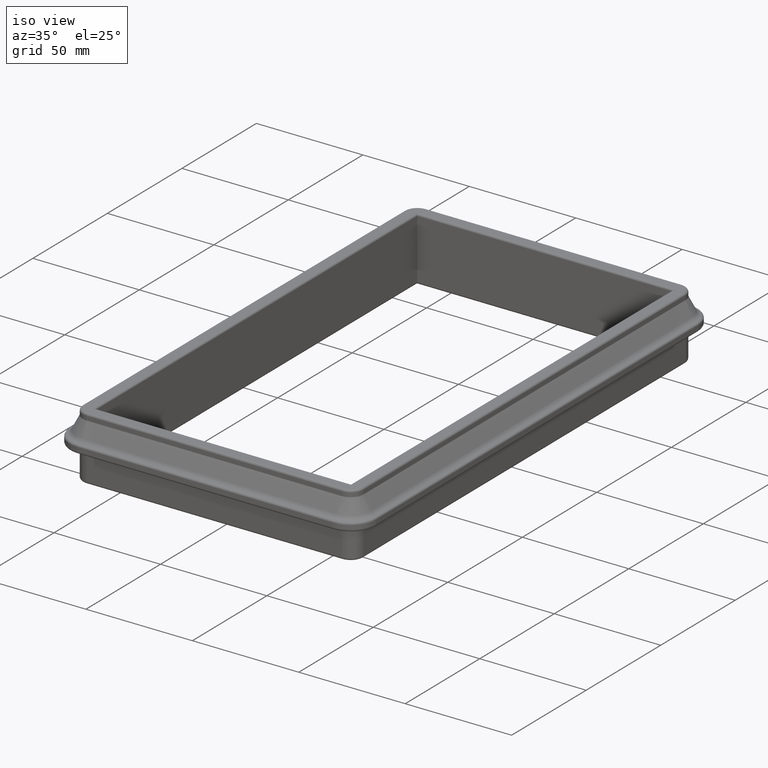
[diagram: clean part render]
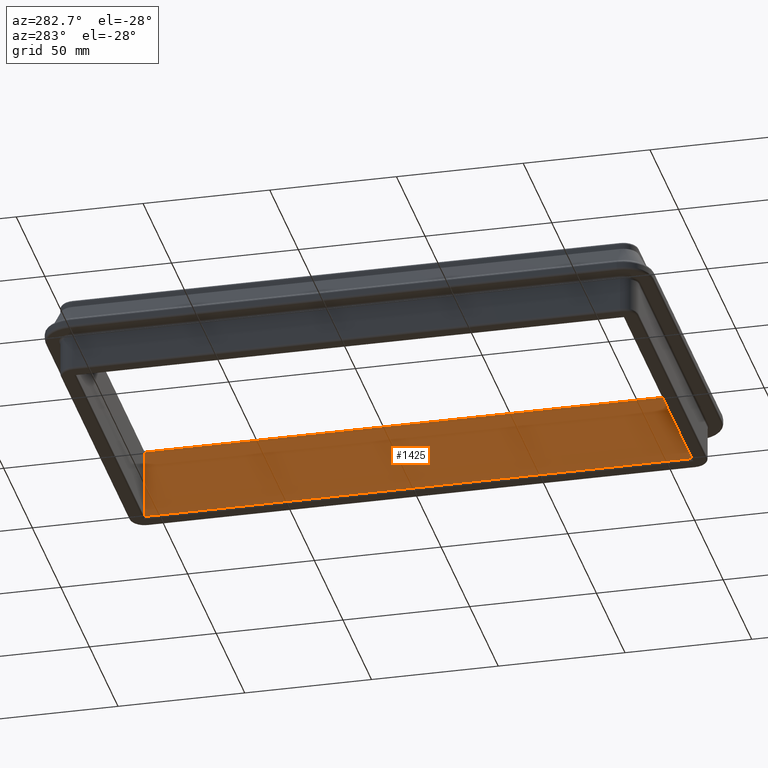
[diagram: tour spotlight — one face highlighted and labeled with its STEP entity id]
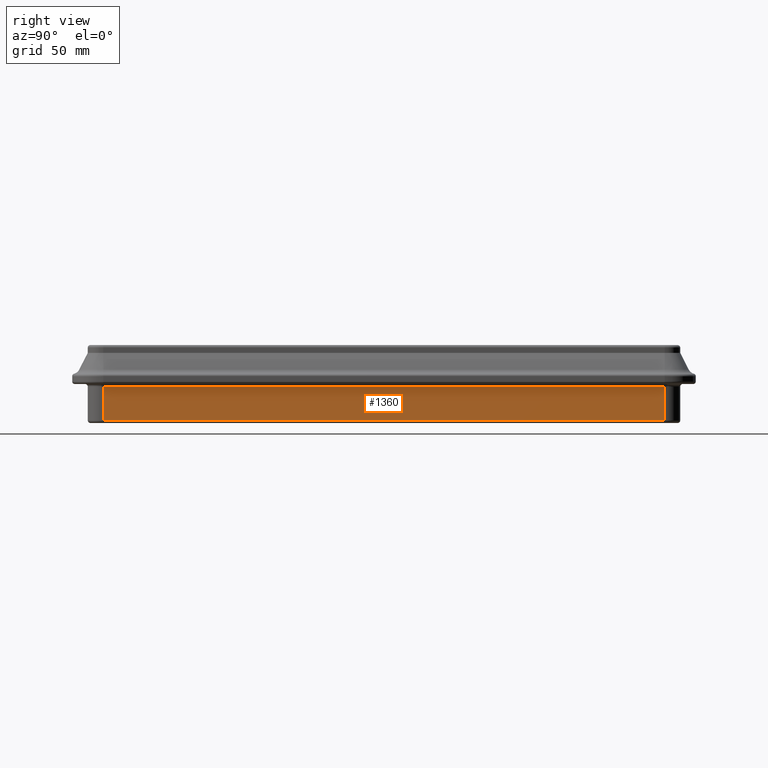
[diagram: tour spotlight — one face highlighted and labeled with its STEP entity id]
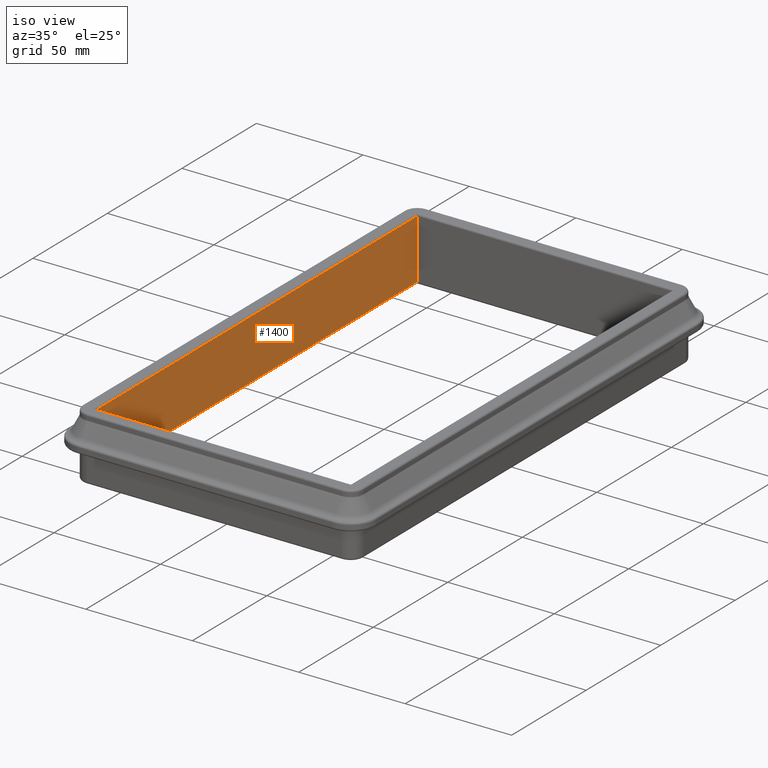
[diagram: tour spotlight — one face highlighted and labeled with its STEP entity id]
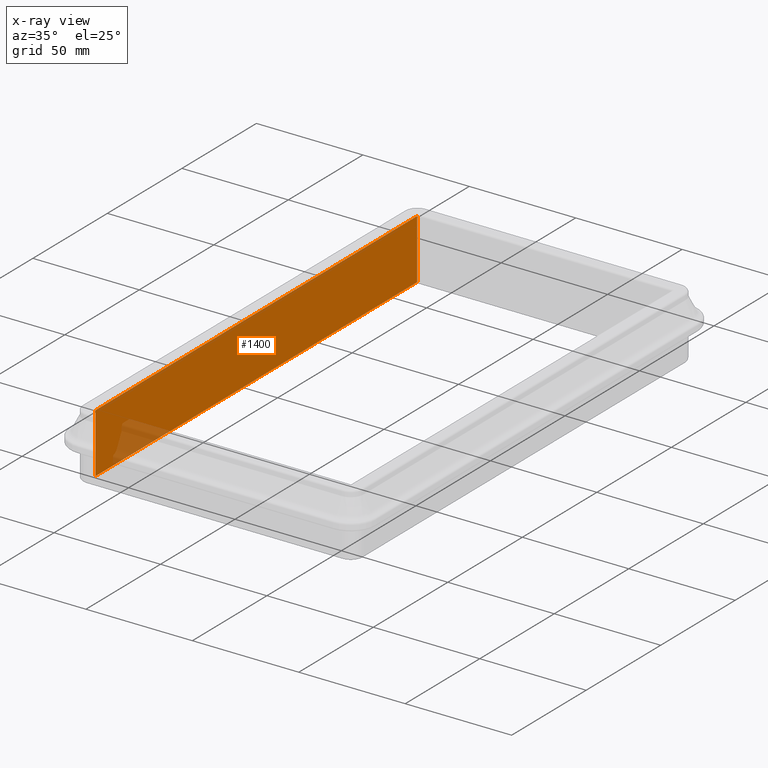
[diagram: x-ray of the same camera — body ghosted, this tour face saturated]
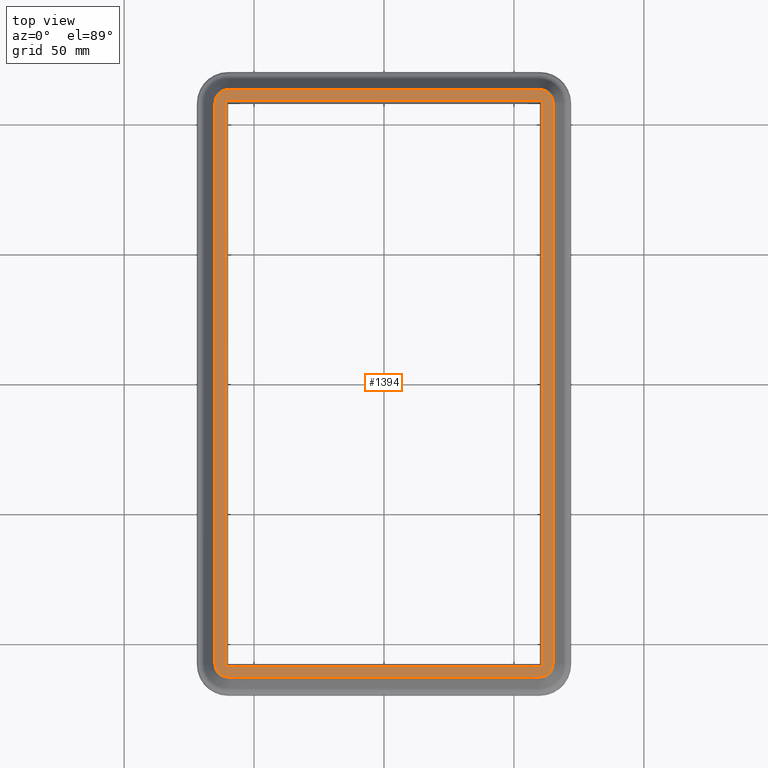
[diagram: tour spotlight — one face highlighted and labeled with its STEP entity id]
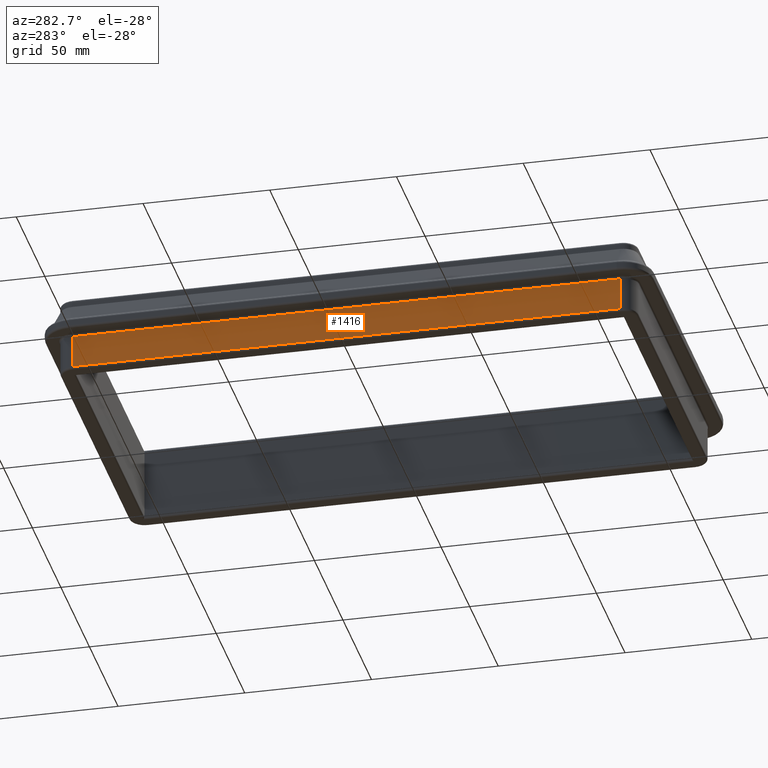
[diagram: tour spotlight — one face highlighted and labeled with its STEP entity id]
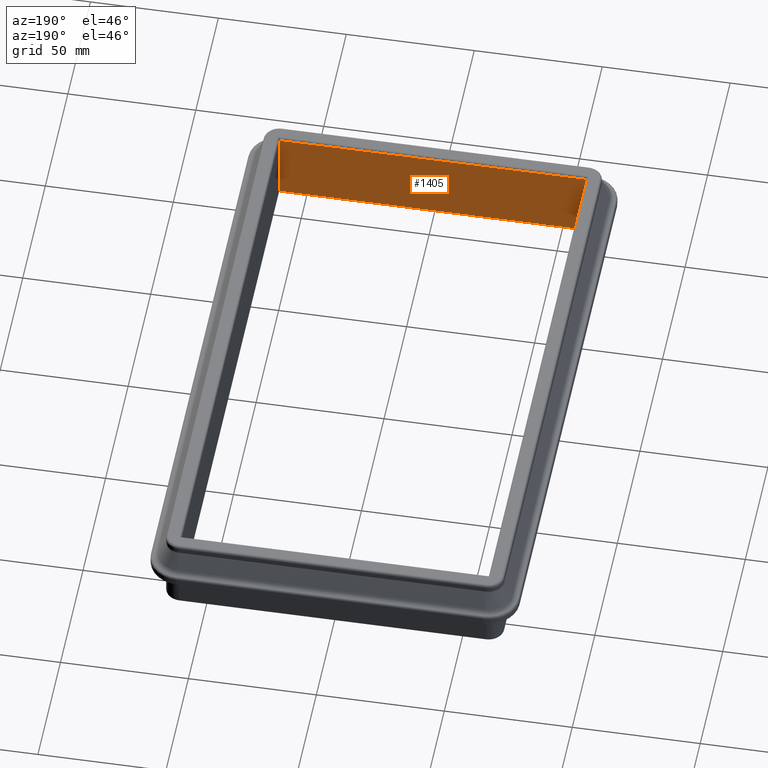
[diagram: tour spotlight — one face highlighted and labeled with its STEP entity id]
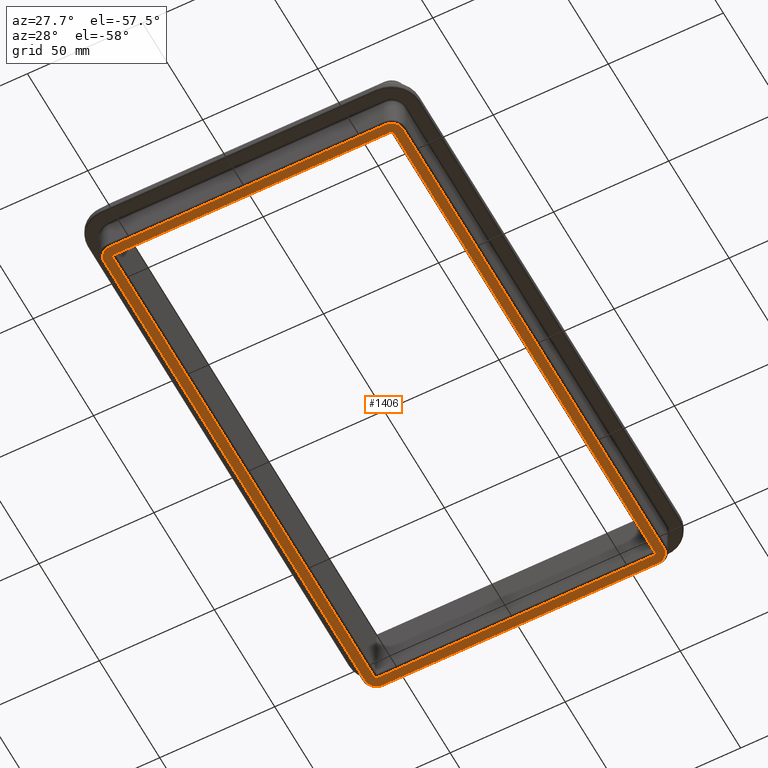
[diagram: tour spotlight — one face highlighted and labeled with its STEP entity id]
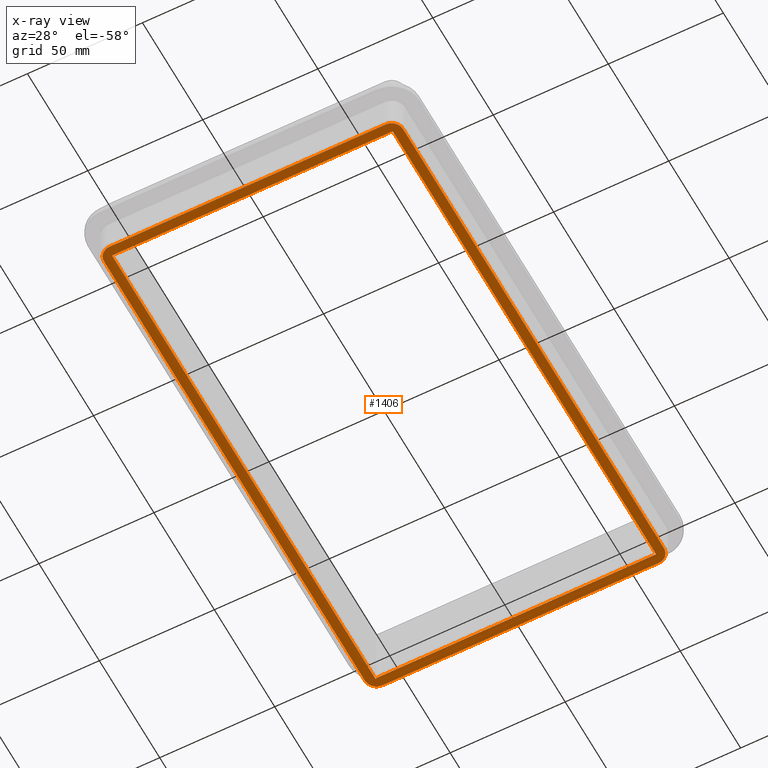
[diagram: x-ray of the same camera — body ghosted, this tour face saturated]
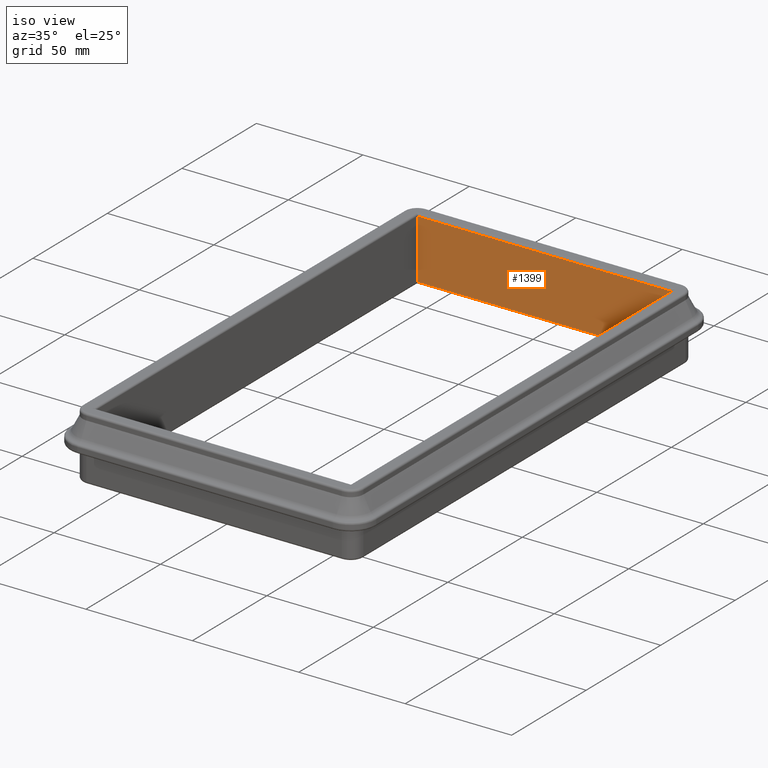
[diagram: tour spotlight — one face highlighted and labeled with its STEP entity id]
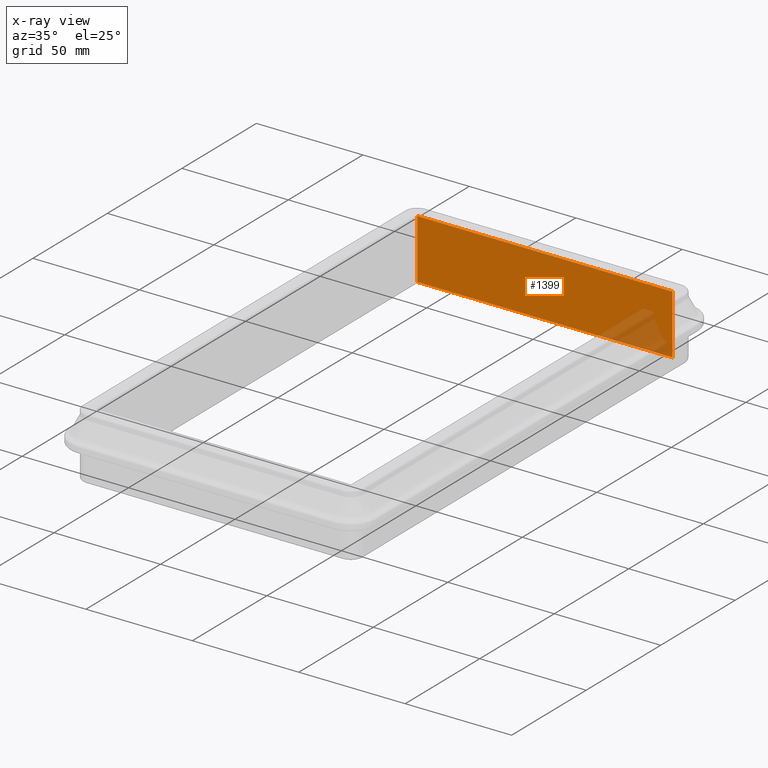
[diagram: x-ray of the same camera — body ghosted, this tour face saturated]
A machine part: a face-by-face anatomy tour. The part has 95 B-rep faces; the first image is the clean iso view, then the 8 largest visible faces are spotlighted one at a time (largest first), each with its STEP entity span.

Face 1 — auxiliary view, entity #1425. In plain terms, the highlighted planar face has unit normal (-1, -0, -0).
Definition (entity closure, byte-faithful):
#47=PLANE('',#1644);
#168=FACE_OUTER_BOUND('',#266,.T.);
#266=EDGE_LOOP('',(#1274,#1275,#1276,#1277));
#340=LINE('',#2459,#440);
#344=LINE('',#2468,#444);
#349=LINE('',#2485,#449);
#353=LINE('',#2493,#453);
#440=VECTOR('',#2016,10.);
#444=VECTOR('',#2026,10.);
#449=VECTOR('',#2045,10.);
#453=VECTOR('',#2055,10.);
#656=VERTEX_POINT('',#2454);
#657=VERTEX_POINT('',#2458);
#659=VERTEX_POINT('',#2466);
#664=VERTEX_POINT('',#2484);
#832=EDGE_CURVE('',#656,#657,#340,.T.);
#837=EDGE_CURVE('',#656,#659,#344,.T.);
#845=EDGE_CURVE('',#664,#659,#349,.T.);
#850=EDGE_CURVE('',#657,#664,#353,.T.);
#1274=ORIENTED_EDGE('',*,*,#832,.F.);
#1275=ORIENTED_EDGE('',*,*,#837,.T.);
#1276=ORIENTED_EDGE('',*,*,#845,.F.);
#1277=ORIENTED_EDGE('',*,*,#850,.F.);
#1425=ADVANCED_FACE('',(#168),#47,.T.);
#1644=AXIS2_PLACEMENT_3D('',#2555,#2139,#2140);
#2016=DIRECTION('',(1.64477485129653E-16,-1.,0.));
#2026=DIRECTION('',(-3.62568286252504E-32,5.9211894646675E-16,-1.));
#2045=DIRECTION('',(-1.64477485129653E-16,1.,0.));
#2055=DIRECTION('',(5.9211894646675E-16,7.25136572505009E-32,-1.));
#2139=DIRECTION('center_axis',(-1.,-1.64477485129653E-16,-5.9211894646675E-16));
#2140=DIRECTION('ref_axis',(5.9211894646675E-16,7.25136572505009E-32,-1.));
#2454=CARTESIAN_POINT('',(60.,108.,14.));
#2458=CARTESIAN_POINT('',(60.,-108.,14.));
#2459=CARTESIAN_POINT('',(59.9999999999999,108.,14.));
#2466=CARTESIAN_POINT('',(60.,108.,-14.));
#2468=CARTESIAN_POINT('',(60.,108.,15.));
#2484=CARTESIAN_POINT('',(60.,-108.,-14.));
#2485=CARTESIAN_POINT('',(59.9999999999999,108.,-14.));
#2493=CARTESIAN_POINT('',(60.,-108.,15.));
#2555=CARTESIAN_POINT('Origin',(59.9999999999999,108.,15.));

Face 2 — right view, entity #1360. In plain terms, the highlighted planar face has unit normal (1, 0, 0).
Definition (entity closure, byte-faithful):
#29=PLANE('',#1517);
#103=FACE_OUTER_BOUND('',#198,.T.);
#198=EDGE_LOOP('',(#986,#987,#988,#989));
#293=LINE('',#2279,#393);
#298=LINE('',#2289,#398);
#299=LINE('',#2293,#399);
#300=LINE('',#2294,#400);
#393=VECTOR('',#1803,10.);
#398=VECTOR('',#1812,10.);
#399=VECTOR('',#1817,10.);
#400=VECTOR('',#1818,10.);
#592=VERTEX_POINT('',#2234);
#607=VERTEX_POINT('',#2274);
#610=VERTEX_POINT('',#2288);
#611=VERTEX_POINT('',#2292);
#742=EDGE_CURVE('',#592,#607,#293,.T.);
#747=EDGE_CURVE('',#610,#607,#298,.T.);
#749=EDGE_CURVE('',#611,#592,#299,.T.);
#750=EDGE_CURVE('',#610,#611,#300,.T.);
#986=ORIENTED_EDGE('',*,*,#742,.F.);
#987=ORIENTED_EDGE('',*,*,#749,.F.);
#988=ORIENTED_EDGE('',*,*,#750,.F.);
#989=ORIENTED_EDGE('',*,*,#747,.T.);
#1360=ADVANCED_FACE('',(#103),#29,.T.);
#1517=AXIS2_PLACEMENT_3D('',#2291,#1815,#1816);
#1803=DIRECTION('',(-1.64477485129653E-16,1.,0.));
#1812=DIRECTION('',(-5.9211894646675E-16,-7.25136572505009E-32,1.));
#1815=DIRECTION('center_axis',(1.,1.64477485129653E-16,5.9211894646675E-16));
#1816=DIRECTION('ref_axis',(-5.9211894646675E-16,-7.25136572505009E-32,
1.));
#1817=DIRECTION('',(-5.9211894646675E-16,-7.25136572505009E-32,1.));
#1818=DIRECTION('',(1.64477485129653E-16,-1.,0.));
#2234=CARTESIAN_POINT('',(66.,-108.,-1.00000000000001));
#2274=CARTESIAN_POINT('',(66.,108.,-1.00000000000001));
#2279=CARTESIAN_POINT('',(66.,108.,-1.00000000000001));
#2288=CARTESIAN_POINT('',(66.,108.,-14.));
#2289=CARTESIAN_POINT('',(66.,108.,-15.));
#2291=CARTESIAN_POINT('Origin',(66.,108.,-15.));
#2292=CARTESIAN_POINT('',(66.,-108.,-14.));
#2293=CARTESIAN_POINT('',(66.,-108.,-15.));
#2294=CARTESIAN_POINT('',(66.,108.,-14.));

Face 3 — iso view, entity #1400. An x-ray twin of the same camera follows (body ghosted, this face saturated) — the face is partly hidden behind the body. In plain terms, the highlighted planar face has unit normal (1, 0, -0).
Definition (entity closure, byte-faithful):
#39=PLANE('',#1600);
#143=FACE_OUTER_BOUND('',#240,.T.);
#240=EDGE_LOOP('',(#1166,#1167,#1168,#1169));
#338=LINE('',#2450,#438);
#342=LINE('',#2465,#442);
#345=LINE('',#2471,#445);
#346=LINE('',#2472,#446);
#438=VECTOR('',#2004,10.);
#442=VECTOR('',#2024,10.);
#445=VECTOR('',#2029,10.);
#446=VECTOR('',#2030,10.);
#654=VERTEX_POINT('',#2448);
#655=VERTEX_POINT('',#2449);
#658=VERTEX_POINT('',#2464);
#660=VERTEX_POINT('',#2470);
#827=EDGE_CURVE('',#654,#655,#338,.T.);
#835=EDGE_CURVE('',#655,#658,#342,.T.);
#838=EDGE_CURVE('',#654,#660,#345,.T.);
#839=EDGE_CURVE('',#658,#660,#346,.T.);
#1166=ORIENTED_EDGE('',*,*,#827,.F.);
#1167=ORIENTED_EDGE('',*,*,#838,.T.);
#1168=ORIENTED_EDGE('',*,*,#839,.F.);
#1169=ORIENTED_EDGE('',*,*,#835,.F.);
#1400=ADVANCED_FACE('',(#143),#39,.T.);
#1600=AXIS2_PLACEMENT_3D('',#2469,#2027,#2028);
#2004=DIRECTION('',(-2.46716227694479E-16,1.,0.));
#2024=DIRECTION('',(-5.9211894646675E-16,0.,-1.));
#2027=DIRECTION('center_axis',(1.,2.46716227694479E-16,-5.9211894646675E-16));
#2028=DIRECTION('ref_axis',(-5.9211894646675E-16,0.,-1.));
#2029=DIRECTION('',(-5.9211894646675E-16,0.,-1.));
#2030=DIRECTION('',(2.46716227694479E-16,-1.,0.));
#2448=CARTESIAN_POINT('',(-59.9999999999999,-108.,14.));
#2449=CARTESIAN_POINT('',(-60.,108.,14.));
#2450=CARTESIAN_POINT('',(-59.9999999999999,1.86270751909332E-14,14.));
#2464=CARTESIAN_POINT('',(-60.,108.,-14.));
#2465=CARTESIAN_POINT('',(-60.,108.,15.));
#2469=CARTESIAN_POINT('Origin',(-59.9999999999999,-108.,15.));
#2470=CARTESIAN_POINT('',(-59.9999999999999,-108.,-14.));
#2471=CARTESIAN_POINT('',(-59.9999999999999,-108.,15.));
#2472=CARTESIAN_POINT('',(-60.,1.78869265078497E-14,-14.));

Face 4 — top view, entity #1394. In plain terms, the highlighted planar face has unit normal (0, 0, 1).
Definition (entity closure, byte-faithful):
#24=FACE_BOUND('',#234,.T.);
#37=PLANE('',#1590);
#137=FACE_OUTER_BOUND('',#233,.T.);
#233=EDGE_LOOP('',(#1134,#1135,#1136,#1137,#1138,#1139,#1140,#1141));
#234=EDGE_LOOP('',(#1142,#1143,#1144,#1145));
#321=LINE('',#2391,#421);
#323=LINE('',#2403,#423);
#325=LINE('',#2415,#425);
#327=LINE('',#2424,#427);
#334=LINE('',#2441,#434);
#335=LINE('',#2443,#435);
#336=LINE('',#2445,#436);
#337=LINE('',#2446,#437);
#421=VECTOR('',#1939,10.);
#423=VECTOR('',#1953,10.);
#425=VECTOR('',#1967,10.);
#427=VECTOR('',#1979,10.);
#434=VECTOR('',#1998,10.);
#435=VECTOR('',#1999,10.);
#436=VECTOR('',#2000,10.);
#437=VECTOR('',#2001,10.);
#535=CIRCLE('',#1563,4.99999999999996);
#541=CIRCLE('',#1571,4.99999999999994);
#545=CIRCLE('',#1577,4.99999999999995);
#549=CIRCLE('',#1583,4.99999999999995);
#633=VERTEX_POINT('',#2379);
#634=VERTEX_POINT('',#2381);
#636=VERTEX_POINT('',#2387);
#638=VERTEX_POINT('',#2393);
#640=VERTEX_POINT('',#2399);
#642=VERTEX_POINT('',#2405);
#644=VERTEX_POINT('',#2411);
#646=VERTEX_POINT('',#2417);
#650=VERTEX_POINT('',#2439);
#651=VERTEX_POINT('',#2440);
#652=VERTEX_POINT('',#2442);
#653=VERTEX_POINT('',#2444);
#793=EDGE_CURVE('',#633,#634,#535,.T.);
#798=EDGE_CURVE('',#634,#636,#321,.T.);
#801=EDGE_CURVE('',#636,#638,#541,.T.);
#804=EDGE_CURVE('',#638,#640,#323,.T.);
#807=EDGE_CURVE('',#640,#642,#545,.T.);
#810=EDGE_CURVE('',#642,#644,#325,.T.);
#813=EDGE_CURVE('',#644,#646,#549,.T.);
#815=EDGE_CURVE('',#646,#633,#327,.T.);
#823=EDGE_CURVE('',#650,#651,#334,.T.);
#824=EDGE_CURVE('',#652,#650,#335,.T.);
#825=EDGE_CURVE('',#653,#652,#336,.T.);
#826=EDGE_CURVE('',#651,#653,#337,.T.);
#1134=ORIENTED_EDGE('',*,*,#793,.F.);
#1135=ORIENTED_EDGE('',*,*,#815,.F.);
#1136=ORIENTED_EDGE('',*,*,#813,.F.);
#1137=ORIENTED_EDGE('',*,*,#810,.F.);
#1138=ORIENTED_EDGE('',*,*,#807,.F.);
#1139=ORIENTED_EDGE('',*,*,#804,.F.);
#1140=ORIENTED_EDGE('',*,*,#801,.F.);
#1141=ORIENTED_EDGE('',*,*,#798,.F.);
#1142=ORIENTED_EDGE('',*,*,#823,.F.);
#1143=ORIENTED_EDGE('',*,*,#824,.F.);
#1144=ORIENTED_EDGE('',*,*,#825,.F.);
#1145=ORIENTED_EDGE('',*,*,#826,.F.);
#1394=ADVANCED_FACE('',(#137,#24),#37,.T.);
#1563=AXIS2_PLACEMENT_3D('',#2382,#1928,#1929);
#1571=AXIS2_PLACEMENT_3D('',#2397,#1946,#1947);
#1577=AXIS2_PLACEMENT_3D('',#2409,#1960,#1961);
#1583=AXIS2_PLACEMENT_3D('',#2421,#1974,#1975);
#1590=AXIS2_PLACEMENT_3D('',#2438,#1996,#1997);
#1928=DIRECTION('center_axis',(0.,0.,-1.));
#1929=DIRECTION('ref_axis',(0.707106781186548,0.707106781186548,0.));
#1939=DIRECTION('',(1.64477485129653E-16,-1.,0.));
#1946=DIRECTION('center_axis',(0.,0.,-1.));
#1947=DIRECTION('ref_axis',(0.707106781186544,-0.707106781186551,0.));
#1953=DIRECTION('',(-1.,0.,0.));
#1960=DIRECTION('center_axis',(0.,0.,-1.));
#1961=DIRECTION('ref_axis',(-0.707106781186551,-0.707106781186544,0.));
#1967=DIRECTION('',(-2.46716227694479E-16,1.,0.));
#1974=DIRECTION('center_axis',(0.,0.,-1.));
#1975=DIRECTION('ref_axis',(-0.707106781186548,0.707106781186547,0.));
#1979=DIRECTION('',(1.,1.48029736616688E-16,0.));
#1996=DIRECTION('center_axis',(0.,0.,1.));
#1997=DIRECTION('ref_axis',(1.,0.,0.));
#1998=DIRECTION('',(2.46716227694479E-16,-1.,0.));
#1999=DIRECTION('',(-1.,-1.48029736616688E-16,0.));
#2000=DIRECTION('',(-1.64477485129653E-16,1.,0.));
#2001=DIRECTION('',(1.,0.,0.));
#2379=CARTESIAN_POINT('',(60.,113.,15.));
#2381=CARTESIAN_POINT('',(64.9999999999999,108.,15.));
#2382=CARTESIAN_POINT('Origin',(60.,108.,15.));
#2387=CARTESIAN_POINT('',(65.,-108.,15.));
#2391=CARTESIAN_POINT('',(64.9999999999999,108.,15.));
#2393=CARTESIAN_POINT('',(60.,-113.,15.));
#2397=CARTESIAN_POINT('Origin',(60.,-108.,15.));
#2399=CARTESIAN_POINT('',(-60.,-113.,15.));
#2403=CARTESIAN_POINT('',(-2.99999999999999,-113.,15.));
#2405=CARTESIAN_POINT('',(-64.9999999999999,-108.,15.));
#2409=CARTESIAN_POINT('Origin',(-60.,-108.,15.));
#2411=CARTESIAN_POINT('',(-65.,108.,15.));
#2415=CARTESIAN_POINT('',(-64.9999999999999,1.78869265078497E-14,15.));
#2417=CARTESIAN_POINT('',(-60.,113.,15.));
#2421=CARTESIAN_POINT('Origin',(-60.,108.,15.));
#2424=CARTESIAN_POINT('',(-63.,113.,15.));
#2438=CARTESIAN_POINT('Origin',(-66.,108.,15.));
#2439=CARTESIAN_POINT('',(-61.,109.,15.));
#2440=CARTESIAN_POINT('',(-60.9999999999999,-109.,15.));
#2441=CARTESIAN_POINT('',(-60.9999999999999,1.83803589632387E-14,15.));
#2442=CARTESIAN_POINT('',(60.9999999999999,109.,15.));
#2443=CARTESIAN_POINT('',(-63.,109.,15.));
#2444=CARTESIAN_POINT('',(61.,-109.,15.));
#2445=CARTESIAN_POINT('',(60.9999999999999,108.,15.));
#2446=CARTESIAN_POINT('',(-2.99999999999999,-109.,15.));

Face 5 — auxiliary view, entity #1416. In plain terms, the highlighted planar face has unit normal (-1, -0, 0).
Definition (entity closure, byte-faithful):
#42=PLANE('',#1634);
#159=FACE_OUTER_BOUND('',#257,.T.);
#257=EDGE_LOOP('',(#1238,#1239,#1240,#1241));
#289=LINE('',#2258,#389);
#359=LINE('',#2523,#459);
#360=LINE('',#2535,#460);
#361=LINE('',#2537,#461);
#389=VECTOR('',#1777,10.);
#459=VECTOR('',#2087,10.);
#460=VECTOR('',#2110,10.);
#461=VECTOR('',#2113,10.);
#599=VERTEX_POINT('',#2250);
#601=VERTEX_POINT('',#2256);
#675=VERTEX_POINT('',#2517);
#676=VERTEX_POINT('',#2521);
#731=EDGE_CURVE('',#601,#599,#289,.T.);
#865=EDGE_CURVE('',#675,#676,#359,.T.);
#871=EDGE_CURVE('',#676,#601,#360,.T.);
#872=EDGE_CURVE('',#675,#599,#361,.T.);
#1238=ORIENTED_EDGE('',*,*,#731,.F.);
#1239=ORIENTED_EDGE('',*,*,#871,.F.);
#1240=ORIENTED_EDGE('',*,*,#865,.F.);
#1241=ORIENTED_EDGE('',*,*,#872,.T.);
#1416=ADVANCED_FACE('',(#159),#42,.T.);
#1634=AXIS2_PLACEMENT_3D('',#2536,#2111,#2112);
#1777=DIRECTION('',(2.46716227694479E-16,-1.,0.));
#2087=DIRECTION('',(-2.46716227694479E-16,1.,0.));
#2110=DIRECTION('',(5.9211894646675E-16,0.,1.));
#2111=DIRECTION('center_axis',(-1.,-2.46716227694479E-16,5.9211894646675E-16));
#2112=DIRECTION('ref_axis',(5.9211894646675E-16,0.,1.));
#2113=DIRECTION('',(5.9211894646675E-16,0.,1.));
#2250=CARTESIAN_POINT('',(-65.9999999999999,-108.,-1.00000000000001));
#2256=CARTESIAN_POINT('',(-66.,108.,-1.00000000000001));
#2258=CARTESIAN_POINT('',(-66.,1.78869265078497E-14,-1.00000000000001));
#2517=CARTESIAN_POINT('',(-66.,-108.,-14.));
#2521=CARTESIAN_POINT('',(-66.,108.,-14.));
#2523=CARTESIAN_POINT('',(-66.,1.69000615970718E-14,-14.));
#2535=CARTESIAN_POINT('',(-66.,108.,-15.));
#2536=CARTESIAN_POINT('Origin',(-66.,-108.,-15.));
#2537=CARTESIAN_POINT('',(-66.,-108.,-15.));

Face 6 — auxiliary view, entity #1405. In plain terms, the highlighted planar face has unit normal (0, 1, -0).
Definition (entity closure, byte-faithful):
#40=PLANE('',#1609);
#148=FACE_OUTER_BOUND('',#245,.T.);
#245=EDGE_LOOP('',(#1186,#1187,#1188,#1189));
#341=LINE('',#2462,#441);
#345=LINE('',#2471,#445);
#351=LINE('',#2490,#451);
#353=LINE('',#2493,#453);
#441=VECTOR('',#2021,10.);
#445=VECTOR('',#2029,10.);
#451=VECTOR('',#2051,10.);
#453=VECTOR('',#2055,10.);
#654=VERTEX_POINT('',#2448);
#657=VERTEX_POINT('',#2458);
#660=VERTEX_POINT('',#2470);
#664=VERTEX_POINT('',#2484);
#834=EDGE_CURVE('',#657,#654,#341,.T.);
#838=EDGE_CURVE('',#654,#660,#345,.T.);
#848=EDGE_CURVE('',#660,#664,#351,.T.);
#850=EDGE_CURVE('',#657,#664,#353,.T.);
#1186=ORIENTED_EDGE('',*,*,#834,.F.);
#1187=ORIENTED_EDGE('',*,*,#850,.T.);
#1188=ORIENTED_EDGE('',*,*,#848,.F.);
#1189=ORIENTED_EDGE('',*,*,#838,.F.);
#1405=ADVANCED_FACE('',(#148),#40,.T.);
#1609=AXIS2_PLACEMENT_3D('',#2492,#2053,#2054);
#2021=DIRECTION('',(-1.,0.,0.));
#2029=DIRECTION('',(-5.9211894646675E-16,0.,-1.));
#2051=DIRECTION('',(1.,0.,0.));
#2053=DIRECTION('center_axis',(0.,1.,-5.9211894646675E-16));
#2054=DIRECTION('ref_axis',(1.0291082086336E-30,-5.9211894646675E-16,-1.));
#2055=DIRECTION('',(5.9211894646675E-16,7.25136572505009E-32,-1.));
#2448=CARTESIAN_POINT('',(-59.9999999999999,-108.,14.));
#2458=CARTESIAN_POINT('',(60.,-108.,14.));
#2462=CARTESIAN_POINT('',(-2.99999999999999,-108.,14.));
#2470=CARTESIAN_POINT('',(-59.9999999999999,-108.,-14.));
#2471=CARTESIAN_POINT('',(-59.9999999999999,-108.,15.));
#2484=CARTESIAN_POINT('',(60.,-108.,-14.));
#2490=CARTESIAN_POINT('',(-4.44089209850063E-15,-108.,-14.));
#2492=CARTESIAN_POINT('Origin',(60.,-108.,15.));
#2493=CARTESIAN_POINT('',(60.,-108.,15.));

Face 7 — auxiliary view, entity #1406. An x-ray twin of the same camera follows (body ghosted, this face saturated) — the face is partly hidden behind the body. In plain terms, the highlighted planar face has unit normal (0, 0, -1).
Definition (entity closure, byte-faithful):
#25=FACE_BOUND('',#247,.T.);
#41=PLANE('',#1610);
#149=FACE_OUTER_BOUND('',#246,.T.);
#246=EDGE_LOOP('',(#1190,#1191,#1192,#1193,#1194,#1195,#1196,#1197));
#247=EDGE_LOOP('',(#1198,#1199,#1200,#1201));
#347=LINE('',#2476,#447);
#348=LINE('',#2481,#448);
#350=LINE('',#2487,#450);
#352=LINE('',#2491,#452);
#354=LINE('',#2497,#454);
#355=LINE('',#2501,#455);
#356=LINE('',#2505,#456);
#357=LINE('',#2509,#457);
#447=VECTOR('',#2033,10.);
#448=VECTOR('',#2040,10.);
#450=VECTOR('',#2046,10.);
#452=VECTOR('',#2052,10.);
#454=VECTOR('',#2058,10.);
#455=VECTOR('',#2061,10.);
#456=VECTOR('',#2064,10.);
#457=VECTOR('',#2067,10.);
#551=CIRCLE('',#1611,4.99999999999998);
#552=CIRCLE('',#1612,4.99999999999998);
#553=CIRCLE('',#1613,5.);
#554=CIRCLE('',#1614,4.99999999999996);
#661=VERTEX_POINT('',#2474);
#662=VERTEX_POINT('',#2475);
#663=VERTEX_POINT('',#2480);
#665=VERTEX_POINT('',#2486);
#666=VERTEX_POINT('',#2495);
#667=VERTEX_POINT('',#2496);
#668=VERTEX_POINT('',#2498);
#669=VERTEX_POINT('',#2500);
#670=VERTEX_POINT('',#2502);
#671=VERTEX_POINT('',#2504);
#672=VERTEX_POINT('',#2506);
#673=VERTEX_POINT('',#2508);
#840=EDGE_CURVE('',#661,#662,#347,.T.);
#843=EDGE_CURVE('',#662,#663,#348,.T.);
#846=EDGE_CURVE('',#663,#665,#350,.T.);
#849=EDGE_CURVE('',#665,#661,#352,.T.);
#851=EDGE_CURVE('',#666,#667,#354,.T.);
#852=EDGE_CURVE('',#668,#666,#551,.T.);
#853=EDGE_CURVE('',#669,#668,#355,.T.);
#854=EDGE_CURVE('',#670,#669,#552,.T.);
#855=EDGE_CURVE('',#671,#670,#356,.T.);
#856=EDGE_CURVE('',#672,#671,#553,.T.);
#857=EDGE_CURVE('',#673,#672,#357,.T.);
#858=EDGE_CURVE('',#667,#673,#554,.T.);
#1190=ORIENTED_EDGE('',*,*,#851,.F.);
#1191=ORIENTED_EDGE('',*,*,#852,.F.);
#1192=ORIENTED_EDGE('',*,*,#853,.F.);
#1193=ORIENTED_EDGE('',*,*,#854,.F.);
#1194=ORIENTED_EDGE('',*,*,#855,.F.);
#1195=ORIENTED_EDGE('',*,*,#856,.F.);
#1196=ORIENTED_EDGE('',*,*,#857,.F.);
#1197=ORIENTED_EDGE('',*,*,#858,.F.);
#1198=ORIENTED_EDGE('',*,*,#840,.F.);
#1199=ORIENTED_EDGE('',*,*,#849,.F.);
#1200=ORIENTED_EDGE('',*,*,#846,.F.);
#1201=ORIENTED_EDGE('',*,*,#843,.F.);
#1406=ADVANCED_FACE('',(#149,#25),#41,.T.);
#1610=AXIS2_PLACEMENT_3D('',#2494,#2056,#2057);
#1611=AXIS2_PLACEMENT_3D('',#2499,#2059,#2060);
#1612=AXIS2_PLACEMENT_3D('',#2503,#2062,#2063);
#1613=AXIS2_PLACEMENT_3D('',#2507,#2065,#2066);
#1614=AXIS2_PLACEMENT_3D('',#2510,#2068,#2069);
#2033=DIRECTION('',(-2.46716227694479E-16,1.,0.));
#2040=DIRECTION('',(1.,1.48029736616688E-16,0.));
#2046=DIRECTION('',(1.64477485129653E-16,-1.,0.));
#2052=DIRECTION('',(-1.,0.,0.));
#2056=DIRECTION('center_axis',(0.,0.,-1.));
#2057=DIRECTION('ref_axis',(-1.,0.,0.));
#2058=DIRECTION('',(1.,0.,0.));
#2059=DIRECTION('center_axis',(0.,0.,1.));
#2060=DIRECTION('ref_axis',(-0.707106781186551,-0.707106781186544,0.));
#2061=DIRECTION('',(2.46716227694479E-16,-1.,0.));
#2062=DIRECTION('center_axis',(0.,0.,1.));
#2063=DIRECTION('ref_axis',(-0.707106781186547,0.707106781186547,0.));
#2064=DIRECTION('',(-1.,-1.48029736616688E-16,0.));
#2065=DIRECTION('center_axis',(0.,0.,1.));
#2066=DIRECTION('ref_axis',(0.707106781186548,0.707106781186547,0.));
#2067=DIRECTION('',(-1.64477485129653E-16,1.,0.));
#2068=DIRECTION('center_axis',(0.,0.,1.));
#2069=DIRECTION('ref_axis',(0.707106781186544,-0.70710678118655,0.));
#2474=CARTESIAN_POINT('',(-60.9999999999999,-109.,-15.));
#2475=CARTESIAN_POINT('',(-61.,109.,-15.));
#2476=CARTESIAN_POINT('',(-61.,1.76402102801553E-14,-15.));
#2480=CARTESIAN_POINT('',(60.9999999999999,109.,-15.));
#2481=CARTESIAN_POINT('',(-60.,109.,-15.));
#2486=CARTESIAN_POINT('',(61.,-109.,-15.));
#2487=CARTESIAN_POINT('',(60.9999999999999,108.,-15.));
#2491=CARTESIAN_POINT('',(-4.44089209850063E-15,-109.,-15.));
#2494=CARTESIAN_POINT('Origin',(-60.,108.,-15.));
#2495=CARTESIAN_POINT('',(-60.,-113.,-15.));
#2496=CARTESIAN_POINT('',(60.,-113.,-15.));
#2497=CARTESIAN_POINT('',(-4.44089209850063E-15,-113.,-15.));
#2498=CARTESIAN_POINT('',(-64.9999999999999,-108.,-15.));
#2499=CARTESIAN_POINT('Origin',(-60.,-108.,-15.));
#2500=CARTESIAN_POINT('',(-65.,108.,-15.));
#2501=CARTESIAN_POINT('',(-65.,1.71467778247663E-14,-15.));
#2502=CARTESIAN_POINT('',(-60.,113.,-15.));
#2503=CARTESIAN_POINT('Origin',(-60.,108.,-15.));
#2504=CARTESIAN_POINT('',(60.,113.,-15.));
#2505=CARTESIAN_POINT('',(-60.,113.,-15.));
#2506=CARTESIAN_POINT('',(65.,108.,-15.));
#2507=CARTESIAN_POINT('Origin',(60.,108.,-15.));
#2508=CARTESIAN_POINT('',(65.,-108.,-15.));
#2509=CARTESIAN_POINT('',(65.,108.,-15.));
#2510=CARTESIAN_POINT('Origin',(60.,-108.,-15.));

Face 8 — iso view, entity #1399. An x-ray twin of the same camera follows (body ghosted, this face saturated) — the face is partly hidden behind the body. In plain terms, the highlighted planar face has unit normal (0, -1, -0).
Definition (entity closure, byte-faithful):
#38=PLANE('',#1599);
#142=FACE_OUTER_BOUND('',#239,.T.);
#239=EDGE_LOOP('',(#1162,#1163,#1164,#1165));
#339=LINE('',#2455,#439);
#342=LINE('',#2465,#442);
#343=LINE('',#2467,#443);
#344=LINE('',#2468,#444);
#439=VECTOR('',#2011,10.);
#442=VECTOR('',#2024,10.);
#443=VECTOR('',#2025,10.);
#444=VECTOR('',#2026,10.);
#655=VERTEX_POINT('',#2449);
#656=VERTEX_POINT('',#2454);
#658=VERTEX_POINT('',#2464);
#659=VERTEX_POINT('',#2466);
#830=EDGE_CURVE('',#655,#656,#339,.T.);
#835=EDGE_CURVE('',#655,#658,#342,.T.);
#836=EDGE_CURVE('',#659,#658,#343,.T.);
#837=EDGE_CURVE('',#656,#659,#344,.T.);
#1162=ORIENTED_EDGE('',*,*,#830,.F.);
#1163=ORIENTED_EDGE('',*,*,#835,.T.);
#1164=ORIENTED_EDGE('',*,*,#836,.F.);
#1165=ORIENTED_EDGE('',*,*,#837,.F.);
#1399=ADVANCED_FACE('',(#142),#38,.T.);
#1599=AXIS2_PLACEMENT_3D('',#2463,#2022,#2023);
#2011=DIRECTION('',(1.,1.48029736616688E-16,0.));
#2022=DIRECTION('center_axis',(1.48029736616688E-16,-1.,-5.9211894646675E-16));
#2023=DIRECTION('ref_axis',(-3.62568286252504E-32,5.9211894646675E-16,-1.));
#2024=DIRECTION('',(-5.9211894646675E-16,0.,-1.));
#2025=DIRECTION('',(-1.,-1.48029736616688E-16,0.));
#2026=DIRECTION('',(-3.62568286252504E-32,5.9211894646675E-16,-1.));
#2449=CARTESIAN_POINT('',(-60.,108.,14.));
#2454=CARTESIAN_POINT('',(60.,108.,14.));
#2455=CARTESIAN_POINT('',(-63.,108.,14.));
#2463=CARTESIAN_POINT('Origin',(-60.,108.,15.));
#2464=CARTESIAN_POINT('',(-60.,108.,-14.));
#2465=CARTESIAN_POINT('',(-60.,108.,15.));
#2466=CARTESIAN_POINT('',(60.,108.,-14.));
#2467=CARTESIAN_POINT('',(-60.,108.,-14.));
#2468=CARTESIAN_POINT('',(60.,108.,15.));